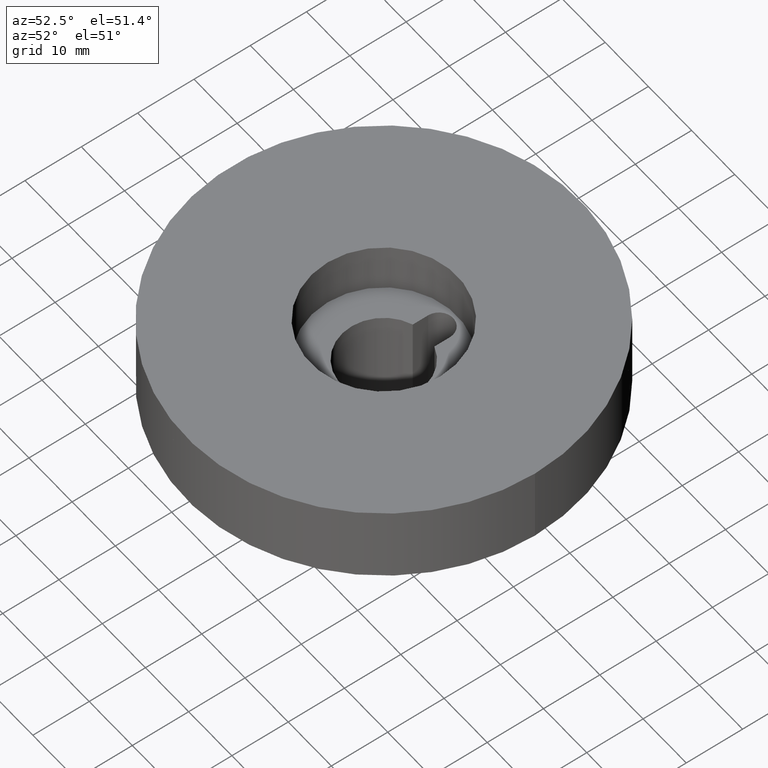
[diagram: clean part render]
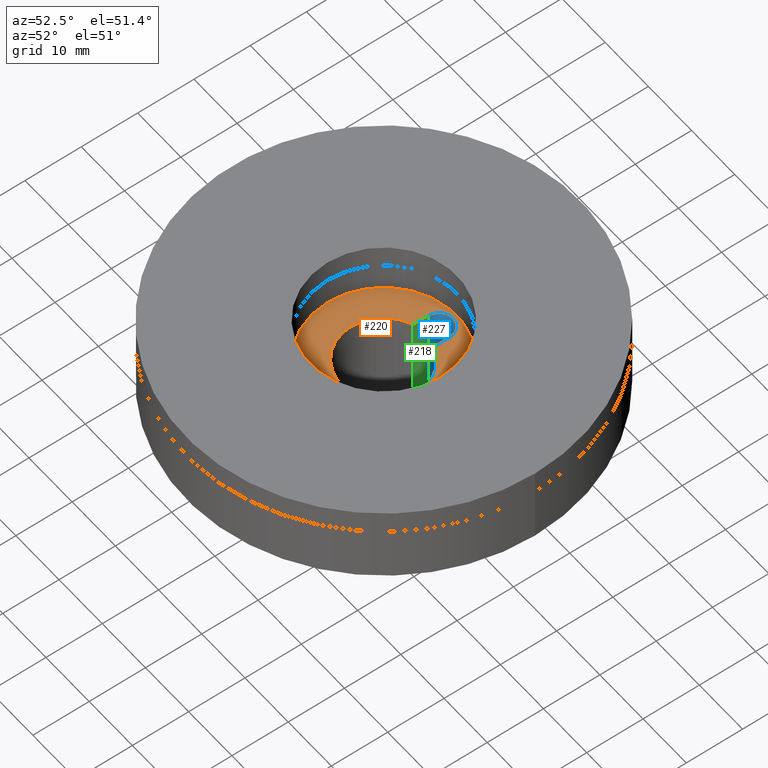
[diagram: same view with three faces highlighted in distinct colors, each labeled with its STEP entity id]
A machine part, auxiliary view with three faces highlighted in distinct colors.
Their STEP definitions:

[orange] entity #220 — the highlighted planar face has unit normal (0, 0, -1).
#220 = ADVANCED_FACE( '', ( #257, #258 ), #259, .F. );
#257 = FACE_OUTER_BOUND( '', #329, .T. );
#258 = FACE_BOUND( '', #330, .T. );
#259 = PLANE( '', #331 );
#329 = EDGE_LOOP( '', ( #418 ) );
#330 = EDGE_LOOP( '', ( #419, #420, #421, #422 ) );
#331 = AXIS2_PLACEMENT_3D( '', #423, #424, #425 );
#418 = ORIENTED_EDGE( '', *, *, #575, .T. );
#419 = ORIENTED_EDGE( '', *, *, #576, .T. );
#420 = ORIENTED_EDGE( '', *, *, #577, .T. );
#421 = ORIENTED_EDGE( '', *, *, #573, .T. );
#422 = ORIENTED_EDGE( '', *, *, #571, .T. );
#423 = CARTESIAN_POINT( '', ( 3.46944695195361E-015, 0.000000000000000, -19.0000000000000 ) );
#424 = DIRECTION( '', ( 0.000000000000000, 0.000000000000000, -1.00000000000000 ) );
#425 = DIRECTION( '', ( 1.00000000000000, 0.000000000000000, 0.000000000000000 ) );
#571 = EDGE_CURVE( '', #625, #623, #626, .T. );
#573 = EDGE_CURVE( '', #628, #625, #629, .F. );
#575 = EDGE_CURVE( '', #631, #631, #632, .T. );
#576 = EDGE_CURVE( '', #623, #633, #634, .F. );
#577 = EDGE_CURVE( '', #633, #628, #635, .T. );
#623 = VERTEX_POINT( '', #705 );
#625 = VERTEX_POINT( '', #708 );
#626 = LINE( '', #709, #710 );
#628 = VERTEX_POINT( '', #713 );
#629 = CIRCLE( '', #714, 7.50000000000000 );
#631 = VERTEX_POINT( '', #717 );
#632 = CIRCLE( '', #718, 13.0000000000000 );
#633 = VERTEX_POINT( '', #719 );
#634 = CIRCLE( '', #720, 2.50000000000000 );
#635 = LINE( '', #721, #722 );
#705 = CARTESIAN_POINT( '', ( -2.50000000000000, 9.80000000000000, -19.0000000000000 ) );
#708 = CARTESIAN_POINT( '', ( -2.50000000000000, 7.07106781186547, -19.0000000000000 ) );
#709 = CARTESIAN_POINT( '', ( -2.50000000000000, 1.53075794227797E-016, -19.0000000000000 ) );
#710 = VECTOR( '', #951, 1000.00000000000 );
#713 = CARTESIAN_POINT( '', ( 2.50000000000000, 7.07106781186548, -19.0000000000000 ) );
#714 = AXIS2_PLACEMENT_3D( '', #953, #954, #955 );
#717 = CARTESIAN_POINT( '', ( 13.0000000000000, 0.000000000000000, -19.0000000000000 ) );
#718 = AXIS2_PLACEMENT_3D( '', #957, #958, #959 );
#719 = CARTESIAN_POINT( '', ( 2.50000000000000, 9.80000000000000, -19.0000000000000 ) );
#720 = AXIS2_PLACEMENT_3D( '', #960, #961, #962 );
#721 = CARTESIAN_POINT( '', ( 2.50000000000000, -1.53075794227797E-016, -19.0000000000000 ) );
#722 = VECTOR( '', #963, 1000.00000000000 );
#951 = DIRECTION( '', ( 6.12303176911189E-017, 1.00000000000000, 0.000000000000000 ) );
#953 = CARTESIAN_POINT( '', ( 0.000000000000000, 0.000000000000000, -19.0000000000000 ) );
#954 = DIRECTION( '', ( 0.000000000000000, -0.000000000000000, 1.00000000000000 ) );
#955 = DIRECTION( '', ( 1.00000000000000, 0.000000000000000, 0.000000000000000 ) );
#957 = CARTESIAN_POINT( '', ( 3.46944695195361E-015, 0.000000000000000, -19.0000000000000 ) );
#958 = DIRECTION( '', ( 0.000000000000000, -0.000000000000000, 1.00000000000000 ) );
#959 = DIRECTION( '', ( 1.00000000000000, 0.000000000000000, 0.000000000000000 ) );
#960 = CARTESIAN_POINT( '', ( 0.000000000000000, 9.80000000000000, -19.0000000000000 ) );
#961 = DIRECTION( '', ( 0.000000000000000, -0.000000000000000, 1.00000000000000 ) );
#962 = DIRECTION( '', ( 1.00000000000000, 0.000000000000000, 0.000000000000000 ) );
#963 = DIRECTION( '', ( -6.12303176911189E-017, -1.00000000000000, -0.000000000000000 ) );

[blue] entity #227 — the highlighted cylindrical surface (edge-blend (fillet) strip) has radius 2.5 mm, axis along (-0, -0, 1).
#227 = ADVANCED_FACE( '', ( #278, #279 ), #280, .F. );
#278 = FACE_BOUND( '', #350, .T. );
#279 = FACE_OUTER_BOUND( '', #351, .T. );
#280 = CYLINDRICAL_SURFACE( '', #352, 2.50000000000000 );
#350 = EDGE_LOOP( '', ( #459 ) );
#351 = EDGE_LOOP( '', ( #460, #461, #462, #463 ) );
#352 = AXIS2_PLACEMENT_3D( '', #464, #465, #466 );
#459 = ORIENTED_EDGE( '', *, *, #579, .T. );
#460 = ORIENTED_EDGE( '', *, *, #567, .T. );
#461 = ORIENTED_EDGE( '', *, *, #578, .F. );
#462 = ORIENTED_EDGE( '', *, *, #576, .F. );
#463 = ORIENTED_EDGE( '', *, *, #570, .T. );
#464 = CARTESIAN_POINT( '', ( 0.000000000000000, 9.80000000000000, 43.3187485251806 ) );
#465 = DIRECTION( '', ( -0.000000000000000, -0.000000000000000, 1.00000000000000 ) );
#466 = DIRECTION( '', ( -1.00000000000000, 6.12303176911189E-017, 0.000000000000000 ) );
#567 = EDGE_CURVE( '', #612, #616, #618, .F. );
#570 = EDGE_CURVE( '', #623, #612, #624, .T. );
#576 = EDGE_CURVE( '', #623, #633, #634, .F. );
#578 = EDGE_CURVE( '', #633, #616, #636, .T. );
#579 = EDGE_CURVE( '', #637, #637, #638, .T. );
#612 = VERTEX_POINT( '', #692 );
#616 = VERTEX_POINT( '', #697 );
#618 = CIRCLE( '', #700, 2.50000000000000 );
#623 = VERTEX_POINT( '', #705 );
#624 = LINE( '', #706, #707 );
#633 = VERTEX_POINT( '', #719 );
#634 = CIRCLE( '', #720, 2.50000000000000 );
#636 = LINE( '', #723, #724 );
#637 = VERTEX_POINT( '', #725 );
#638 = B_SPLINE_CURVE_WITH_KNOTS( '', 3, ( #726, #727, #728, #729, #730, #731, #732, #733, #734, #735, #736, #737, #738, #739, #740, #741, #742, #743, #744, #745, #746, #747, #748, #749, #750, #751, #752, #753, #754, #755, #756, #757, #758, #759, #760, #761, #762, #763, #764, #765, #766, #767, #768, #769, #770, #771, #772, #773, #774, #775, #776, #777, #778, #779, #780, #781, #782, #783, #784, #785, #786, #787 ), .UNSPECIFIED., .T., .F., ( 2, 2, 2, 2, 2, 2, 2, 2, 2, 2, 2, 2, 2, 2, 2, 2, 2, 2, 2, 2, 2, 2, 2, 2, 2, 2, 2, 2, 2, 2, 2, 2, 2 ), ( -0.000439835752063661, 0.000000000000000, 0.000439835752063655, 0.000879671504127309, 0.00131950725619096, 0.00175934300825462, 0.00219917876031827, 0.00263901451238193, 0.00307885026444558, 0.00351868601650924, 0.00395852176857289, 0.00439835752063654, 0.00483819327270020, 0.00527802902476385, 0.00571786477682751, 0.00615770052889116, 0.00659753628095482, 0.00703737203301847, 0.00747720778508213, 0.00791704353714578, 0.00835687928920944, 0.00879671504127309, 0.00923655079333674, 0.00967638654540040, 0.0101162222974641, 0.0105560580495277, 0.0109958938015914, 0.0114357295536550, 0.0123154010577823, 0.0131950725619096, 0.0136349083139733, 0.0140747440660370, 0.0145145798181006 ), .UNSPECIFIED. );
#692 = CARTESIAN_POINT( '', ( -2.50000000000000, 9.80000000000000, -39.0000000000000 ) );
#697 = CARTESIAN_POINT( '', ( 2.50000000000000, 9.80000000000000, -39.0000000000000 ) );
#700 = AXIS2_PLACEMENT_3D( '', #941, #942, #943 );
#705 = CARTESIAN_POINT( '', ( -2.50000000000000, 9.80000000000000, -19.0000000000000 ) );
#706 = CARTESIAN_POINT( '', ( -2.50000000000000, 9.80000000000000, 43.3187485251806 ) );
#707 = VECTOR( '', #950, 1000.00000000000 );
#719 = CARTESIAN_POINT( '', ( 2.50000000000000, 9.80000000000000, -19.0000000000000 ) );
#720 = AXIS2_PLACEMENT_3D( '', #960, #961, #962 );
#723 = CARTESIAN_POINT( '', ( 2.50000000000000, 9.80000000000000, 43.3187485251806 ) );
#724 = VECTOR( '', #964, 1000.00000000000 );
#725 = CARTESIAN_POINT( '', ( -2.10000000000000, 11.1564659966251, -31.5000000000000 ) );
#726 = CARTESIAN_POINT( '', ( -2.10000000000000, 11.1564659966251, -31.6491353751273 ) );
#727 = CARTESIAN_POINT( '', ( -2.10000000000000, 11.1564659966251, -31.3508646248727 ) );
#728 = CARTESIAN_POINT( '', ( -2.08435683647385, 11.1813439942753, -31.2071363169546 ) );
#729 = CARTESIAN_POINT( '', ( -2.02567398357489, 11.2660489638970, -30.9281980492600 ) );
#730 = CARTESIAN_POINT( '', ( -1.98420755713749, 11.3230290790015, -30.7996409061790 ) );
#731 = CARTESIAN_POINT( '', ( -1.88035503415051, 11.4495339192725, -30.5556232554514 ) );
#732 = CARTESIAN_POINT( '', ( -1.81749538399029, 11.5194987794126, -30.4401667616177 ) );
#733 = CARTESIAN_POINT( '', ( -1.67460472069960, 11.6589417830147, -30.2263301081456 ) );
#734 = CARTESIAN_POINT( '', ( -1.59413382323229, 11.7291431055400, -30.1268380029138 ) );
#735 = CARTESIAN_POINT( '', ( -1.41296240095104, 11.8655248779728, -29.9410343909779 ) );
#736 = CARTESIAN_POINT( '', ( -1.31142274166336, 11.9320857320492, -29.8543909373904 ) );
#737 = CARTESIAN_POINT( '', ( -1.09224697182010, 12.0522468178930, -29.7014296380612 ) );
#738 = CARTESIAN_POINT( '', ( -0.973998164272489, 12.1065258578225, -29.6342219890983 ) );
#739 = CARTESIAN_POINT( '', ( -0.716372262492356, 12.1990716409356, -29.5209571021572 ) );
#740 = CARTESIAN_POINT( '', ( -0.580723025178697, 12.2358598255287, -29.4767127575598 ) );
#741 = CARTESIAN_POINT( '', ( -0.297775850304751, 12.2863591584026, -29.4161909779519 ) );
#742 = CARTESIAN_POINT( '', ( -0.149130544067355, 12.2998292901256, -29.4002032260973 ) );
#743 = CARTESIAN_POINT( '', ( 0.143351047622140, 12.3001673696154, -29.3998007504021 ) );
#744 = CARTESIAN_POINT( '', ( 0.291525414577719, 12.2871279292922, -29.4152751166439 ) );
#745 = CARTESIAN_POINT( '', ( 0.575547400619080, 12.2371166557329, -29.4752012207951 ) );
#746 = CARTESIAN_POINT( '', ( 0.711482784659290, 12.2005370588994, -29.5191836778189 ) );
#747 = CARTESIAN_POINT( '', ( 0.969647184989730, 12.1083696109283, -29.6319460950693 ) );
#748 = CARTESIAN_POINT( '', ( 1.08855088552138, 12.0540835008846, -29.6991260345662 ) );
#749 = CARTESIAN_POINT( '', ( 1.30939659922935, 11.9333813548581, -29.8527080963979 ) );
#750 = CARTESIAN_POINT( '', ( 1.41070249210635, 11.8670605469818, -29.9390117352777 ) );
#751 = CARTESIAN_POINT( '', ( 1.59178449659479, 11.7310730028987, -30.1241409955099 ) );
#752 = CARTESIAN_POINT( '', ( 1.67262363220907, 11.6607616255679, -30.2236536169430 ) );
#753 = CARTESIAN_POINT( '', ( 1.81661334723600, 11.5204707462942, -30.4385642500786 ) );
#754 = CARTESIAN_POINT( '', ( 1.87941052860776, 11.4506102024750, -30.5537788810757 ) );
#755 = CARTESIAN_POINT( '', ( 1.98334119358747, 11.3241573689667, -30.7972368459011 ) );
#756 = CARTESIAN_POINT( '', ( 2.02555971576877, 11.2661966338486, -30.9280882559316 ) );
#757 = CARTESIAN_POINT( '', ( 2.08392701054680, 11.1819815288084, -31.2046638866273 ) );
#758 = CARTESIAN_POINT( '', ( 2.09994521950943, 11.1565508045034, -31.3522293212096 ) );
#759 = CARTESIAN_POINT( '', ( 2.10005449036125, 11.1563816379076, -31.6462095618084 ) );
#760 = CARTESIAN_POINT( '', ( 2.08418137990297, 11.1815856487421, -31.7934044353438 ) );
#761 = CARTESIAN_POINT( '', ( 2.02621795816968, 11.2652753035300, -32.0695076584247 ) );
#762 = CARTESIAN_POINT( '', ( 1.98467071707643, 11.3224512289360, -32.1992015872950 ) );
#763 = CARTESIAN_POINT( '', ( 1.88022552053495, 11.4497053044827, -32.4447500763829 ) );
#764 = CARTESIAN_POINT( '', ( 1.81843317881112, 11.5184973212353, -32.5582099839926 ) );
#765 = CARTESIAN_POINT( '', ( 1.67586675480426, 11.6577951687514, -32.7719977264778 ) );
#766 = CARTESIAN_POINT( '', ( 1.59448204355146, 11.7288919201027, -32.8728244040212 ) );
#767 = CARTESIAN_POINT( '', ( 1.41230746047255, 11.8660069370017, -33.0596177315540 ) );
#768 = CARTESIAN_POINT( '', ( 1.31290504535943, 11.9311224478553, -33.1443552208540 ) );
#769 = CARTESIAN_POINT( '', ( 1.09538028914764, 12.0506764689822, -33.2965983893533 ) );
#770 = CARTESIAN_POINT( '', ( 0.976157083536623, 12.1055952240470, -33.3646281688656 ) );
#771 = CARTESIAN_POINT( '', ( 0.719193293055658, 12.1982103736142, -33.4779994608416 ) );
#772 = CARTESIAN_POINT( '', ( 0.584328740520960, 12.2350386012317, -33.5223001336915 ) );
#773 = CARTESIAN_POINT( '', ( 0.300070780124665, 12.2861236078286, -33.5835295617396 ) );
#774 = CARTESIAN_POINT( '', ( 0.152511829660477, 12.2996325468522, -33.5995625552304 ) );
#775 = CARTESIAN_POINT( '', ( -0.140217382715917, 12.3003523377823, -33.6004194502757 ) );
#776 = CARTESIAN_POINT( '', ( -0.289271654484296, 12.2873772610672, -33.5850213495429 ) );
#777 = CARTESIAN_POINT( '', ( -0.572874017414450, 12.2377323661825, -33.5255388118497 ) );
#778 = CARTESIAN_POINT( '', ( -0.710196685114514, 12.2008960977363, -33.4812487329900 ) );
#779 = CARTESIAN_POINT( '', ( -1.09645892869372, 12.0632948178214, -33.3129206578810 ) );
#780 = CARTESIAN_POINT( '', ( -1.31877965124758, 11.9359215712357, -33.1546623093783 ) );
#781 = CARTESIAN_POINT( '', ( -1.68130946881144, 11.6640115871688, -32.7846344214238 ) );
#782 = CARTESIAN_POINT( '', ( -1.82696503828213, 11.5143572947435, -32.5687553316232 ) );
#783 = CARTESIAN_POINT( '', ( -1.98299577190399, 11.3246092335078, -32.2037311781536 ) );
#784 = CARTESIAN_POINT( '', ( -2.02541717780720, 11.2663940964346, -32.0723826618084 ) );
#785 = CARTESIAN_POINT( '', ( -2.08381057422884, 11.1821576903330, -31.7960914494332 ) );
#786 = CARTESIAN_POINT( '', ( -2.10000000000000, 11.1564659966251, -31.6491353751273 ) );
#787 = CARTESIAN_POINT( '', ( -2.10000000000000, 11.1564659966251, -31.3508646248727 ) );
#941 = CARTESIAN_POINT( '', ( 0.000000000000000, 9.80000000000000, -39.0000000000000 ) );
#942 = DIRECTION( '', ( 0.000000000000000, -0.000000000000000, 1.00000000000000 ) );
#943 = DIRECTION( '', ( 1.00000000000000, 0.000000000000000, 0.000000000000000 ) );
#950 = DIRECTION( '', ( 0.000000000000000, 0.000000000000000, -1.00000000000000 ) );
#960 = CARTESIAN_POINT( '', ( 0.000000000000000, 9.80000000000000, -19.0000000000000 ) );
#961 = DIRECTION( '', ( 0.000000000000000, -0.000000000000000, 1.00000000000000 ) );
#962 = DIRECTION( '', ( 1.00000000000000, 0.000000000000000, 0.000000000000000 ) );
#964 = DIRECTION( '', ( 0.000000000000000, 0.000000000000000, -1.00000000000000 ) );

[green] entity #218 — the highlighted planar face has unit normal (1, -0, 0).
#218 = ADVANCED_FACE( '', ( #253 ), #254, .T. );
#253 = FACE_OUTER_BOUND( '', #325, .T. );
#254 = PLANE( '', #326 );
#325 = EDGE_LOOP( '', ( #404, #405, #406, #407 ) );
#326 = AXIS2_PLACEMENT_3D( '', #408, #409, #410 );
#404 = ORIENTED_EDGE( '', *, *, #564, .T. );
#405 = ORIENTED_EDGE( '', *, *, #570, .F. );
#406 = ORIENTED_EDGE( '', *, *, #571, .F. );
#407 = ORIENTED_EDGE( '', *, *, #572, .T. );
#408 = CARTESIAN_POINT( '', ( -2.50000000000000, 7.07106781186548, 43.3187485251806 ) );
#409 = DIRECTION( '', ( 1.00000000000000, -6.12303176911189E-017, 0.000000000000000 ) );
#410 = DIRECTION( '', ( 6.12303176911189E-017, 1.00000000000000, 0.000000000000000 ) );
#564 = EDGE_CURVE( '', #611, #612, #613, .T. );
#570 = EDGE_CURVE( '', #623, #612, #624, .T. );
#571 = EDGE_CURVE( '', #625, #623, #626, .T. );
#572 = EDGE_CURVE( '', #625, #611, #627, .T. );
#611 = VERTEX_POINT( '', #691 );
#612 = VERTEX_POINT( '', #692 );
#613 = LINE( '', #693, #694 );
#623 = VERTEX_POINT( '', #705 );
#624 = LINE( '', #706, #707 );
#625 = VERTEX_POINT( '', #708 );
#626 = LINE( '', #709, #710 );
#627 = LINE( '', #711, #712 );
#691 = CARTESIAN_POINT( '', ( -2.50000000000001, 7.07106781186547, -39.0000000000000 ) );
#692 = CARTESIAN_POINT( '', ( -2.50000000000000, 9.80000000000000, -39.0000000000000 ) );
#693 = CARTESIAN_POINT( '', ( -2.50000000000000, 1.53075794227797E-016, -39.0000000000000 ) );
#694 = VECTOR( '', #936, 1000.00000000000 );
#705 = CARTESIAN_POINT( '', ( -2.50000000000000, 9.80000000000000, -19.0000000000000 ) );
#706 = CARTESIAN_POINT( '', ( -2.50000000000000, 9.80000000000000, 43.3187485251806 ) );
#707 = VECTOR( '', #950, 1000.00000000000 );
#708 = CARTESIAN_POINT( '', ( -2.50000000000000, 7.07106781186547, -19.0000000000000 ) );
#709 = CARTESIAN_POINT( '', ( -2.50000000000000, 1.53075794227797E-016, -19.0000000000000 ) );
#710 = VECTOR( '', #951, 1000.00000000000 );
#711 = CARTESIAN_POINT( '', ( -2.50000000000001, 7.07106781186547, 43.3187485251806 ) );
#712 = VECTOR( '', #952, 1000.00000000000 );
#936 = DIRECTION( '', ( 6.12303176911189E-017, 1.00000000000000, 0.000000000000000 ) );
#950 = DIRECTION( '', ( 0.000000000000000, 0.000000000000000, -1.00000000000000 ) );
#951 = DIRECTION( '', ( 6.12303176911189E-017, 1.00000000000000, 0.000000000000000 ) );
#952 = DIRECTION( '', ( 0.000000000000000, 0.000000000000000, -1.00000000000000 ) );